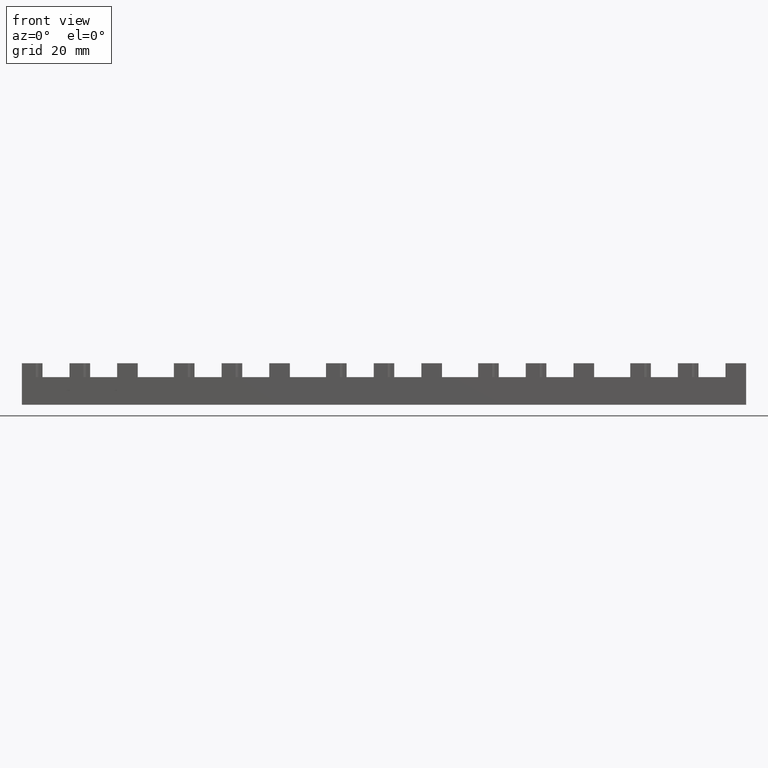
[diagram: clean part render]
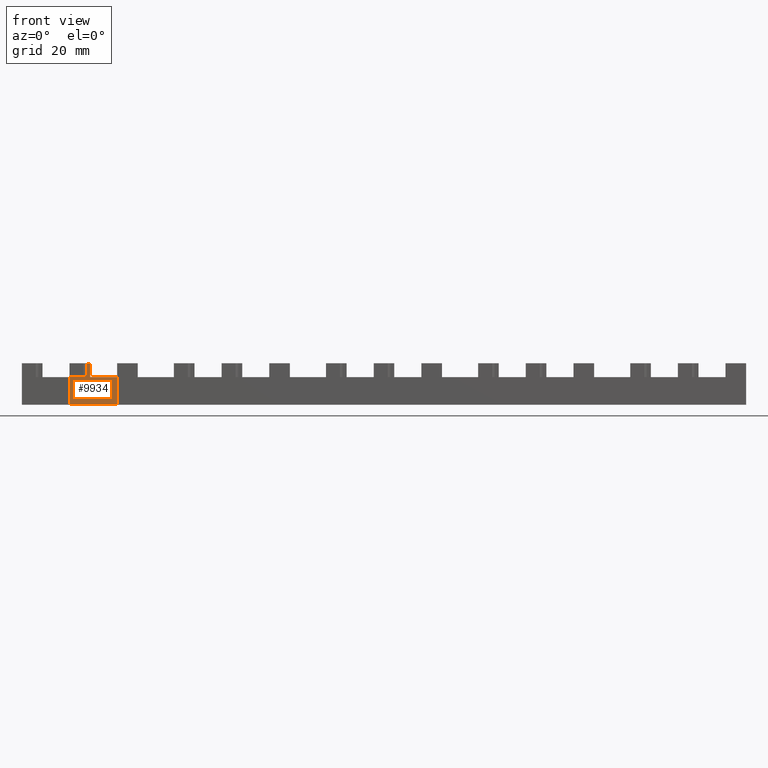
[diagram: same view with one face highlighted and labeled with its STEP entity id]
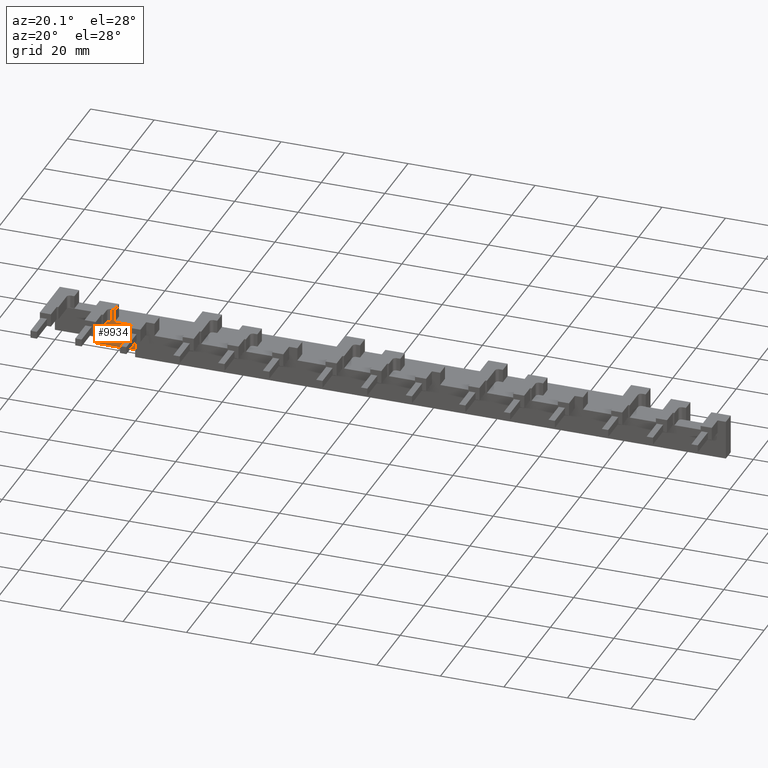
[diagram: same view with one face highlighted and labeled with its STEP entity id]
A machine part, front view. The second image highlights one B-rep face of the part: STEP entity #9934.
A second angle (auxiliary view) of the same face is appended — the face is thin or edge-on in the first view.
In plain terms, the highlighted planar face has unit normal (0, -1, 0).
Its self-contained STEP definition (entity closure, byte-faithful):
#6043=CARTESIAN_POINT('',(20.199999999999292,-3.79999999999933,103.99999999999213));
#6044=VERTEX_POINT('',#6043);
#6053=CARTESIAN_POINT('',(28.19999999999968,-3.799999999999955,103.99999999999208));
#6054=VERTEX_POINT('',#6053);
#6055=CARTESIAN_POINT('',(20.199999999999292,-3.799999999999338,103.99999999999214));
#6056=DIRECTION('',(1.0,0.0,0.0));
#6057=VECTOR('',#6056,8.000000000000384);
#6058=LINE('',#6055,#6057);
#6059=EDGE_CURVE('',#6044,#6054,#6058,.T.);
#6252=CARTESIAN_POINT('',(28.199999999999619,-3.799999999999288,95.799999999992082));
#6253=VERTEX_POINT('',#6252);
#6260=CARTESIAN_POINT('',(14.099999999999708,-3.799999999999373,95.799999999992167));
#6261=VERTEX_POINT('',#6260);
#6262=CARTESIAN_POINT('',(28.199999999999619,-3.799999999999288,95.799999999992068));
#6263=DIRECTION('',(-1.0,0.0,0.0));
#6264=VECTOR('',#6263,14.099999999999909);
#6265=LINE('',#6262,#6264);
#6266=EDGE_CURVE('',#6253,#6261,#6265,.T.);
#6696=CARTESIAN_POINT('',(28.199999999999676,-3.799999999999288,103.99999999999207));
#6697=DIRECTION('',(0.0,0.0,-1.0));
#6698=VECTOR('',#6697,8.200000000000003);
#6699=LINE('',#6696,#6698);
#6700=EDGE_CURVE('',#6054,#6253,#6699,.T.);
#9661=CARTESIAN_POINT('',(19.099999999999792,-3.799999999999359,108.09999999999214));
#9662=VERTEX_POINT('',#9661);
#9680=CARTESIAN_POINT('',(19.099999999999767,-3.799999999999359,103.99999999999216));
#9681=VERTEX_POINT('',#9680);
#9689=CARTESIAN_POINT('',(19.099999999999767,-3.799999999999359,103.99999999999216));
#9690=DIRECTION('',(0.0,0.0,1.0));
#9691=VECTOR('',#9690,4.099999999999994);
#9692=LINE('',#9689,#9691);
#9693=EDGE_CURVE('',#9681,#9662,#9692,.T.);
#9843=CARTESIAN_POINT('',(14.099999999999763,-3.799999999999373,103.99999999999217));
#9844=VERTEX_POINT('',#9843);
#9845=CARTESIAN_POINT('',(14.099999999999765,-3.799999999999373,103.99999999999217));
#9846=DIRECTION('',(0.0,0.0,-1.0));
#9847=VECTOR('',#9846,8.200000000000003);
#9848=LINE('',#9845,#9847);
#9849=EDGE_CURVE('',#9844,#6261,#9848,.T.);
#9890=CARTESIAN_POINT('',(20.199999999999317,-3.79999999999933,108.09999999999214));
#9891=VERTEX_POINT('',#9890);
#9898=CARTESIAN_POINT('',(20.199999999999292,-3.79999999999933,103.99999999999213));
#9899=DIRECTION('',(0.0,0.0,1.0));
#9900=VECTOR('',#9899,4.099999999999994);
#9901=LINE('',#9898,#9900);
#9902=EDGE_CURVE('',#6044,#9891,#9901,.T.);
#9909=CARTESIAN_POINT('',(20.199999999999292,-3.79999999999933,103.99999999999213));
#9910=DIRECTION('',(0.0,-1.0,0.0));
#9911=DIRECTION('',(0.0,0.0,-1.0));
#9912=AXIS2_PLACEMENT_3D('',#9909,#9910,#9911);
#9913=PLANE('',#9912);
#9914=CARTESIAN_POINT('',(20.199999999999317,-3.799999999999344,108.09999999999212));
#9915=DIRECTION('',(-1.0,0.0,0.0));
#9916=VECTOR('',#9915,1.099999999999525);
#9917=LINE('',#9914,#9916);
#9918=EDGE_CURVE('',#9891,#9662,#9917,.T.);
#9919=ORIENTED_EDGE('',*,*,#9918,.T.);
#9920=ORIENTED_EDGE('',*,*,#9693,.F.);
#9921=CARTESIAN_POINT('',(14.099999999999767,-3.799999999999376,103.99999999999218));
#9922=DIRECTION('',(1.0,0.0,0.0));
#9923=VECTOR('',#9922,5.0);
#9924=LINE('',#9921,#9923);
#9925=EDGE_CURVE('',#9844,#9681,#9924,.T.);
#9926=ORIENTED_EDGE('',*,*,#9925,.F.);
#9927=ORIENTED_EDGE('',*,*,#9849,.T.);
#9928=ORIENTED_EDGE('',*,*,#6266,.F.);
#9929=ORIENTED_EDGE('',*,*,#6700,.F.);
#9930=ORIENTED_EDGE('',*,*,#6059,.F.);
#9931=ORIENTED_EDGE('',*,*,#9902,.T.);
#9932=EDGE_LOOP('',(#9919,#9920,#9926,#9927,#9928,#9929,#9930,#9931));
#9933=FACE_OUTER_BOUND('',#9932,.T.);
#9934=ADVANCED_FACE('',(#9933),#9913,.T.);